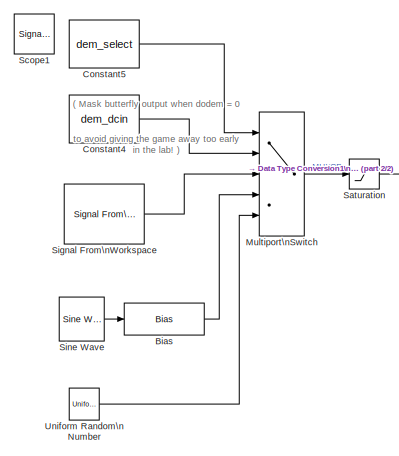
[diagram: root canvas - part 1/2, top left region]
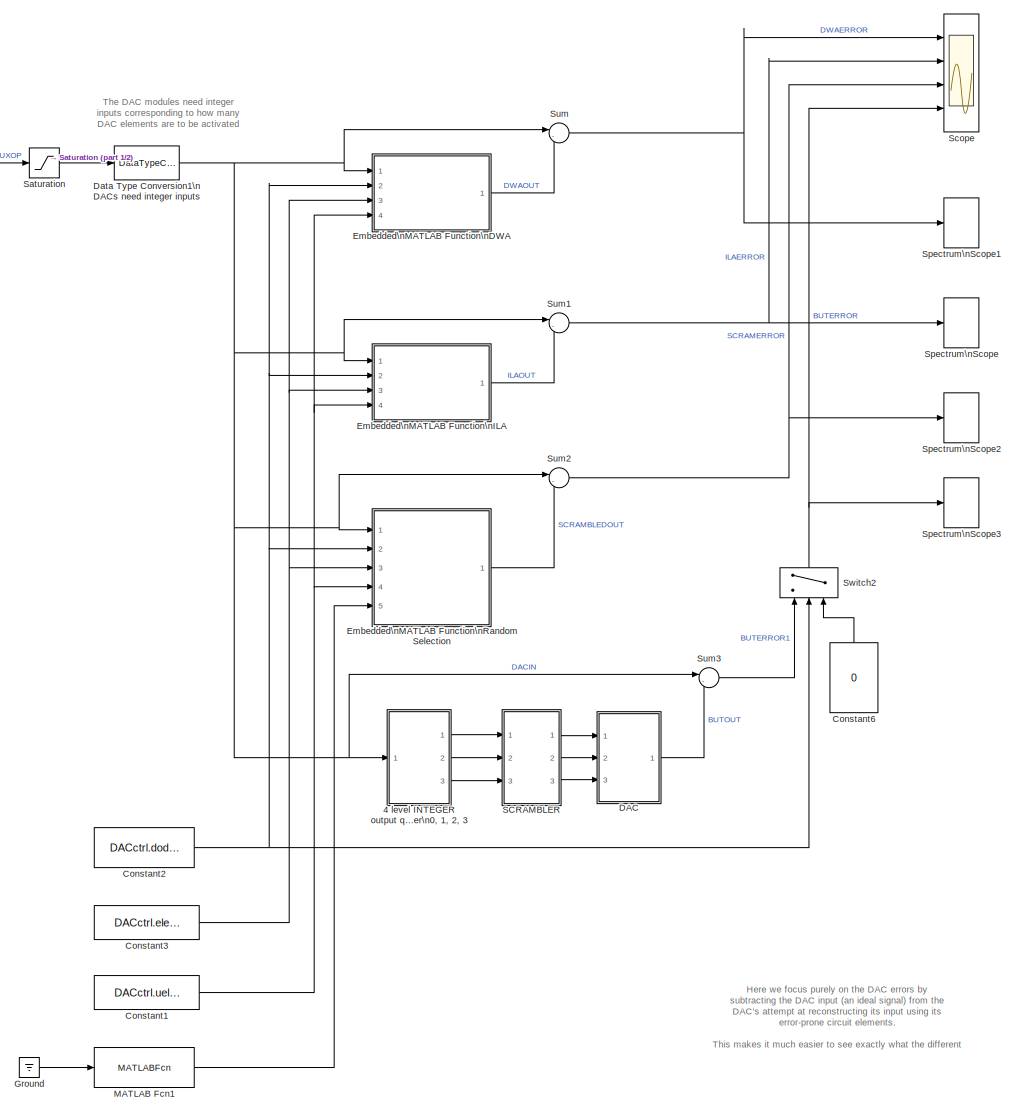
[diagram: root canvas - part 2/2, most of the canvas]
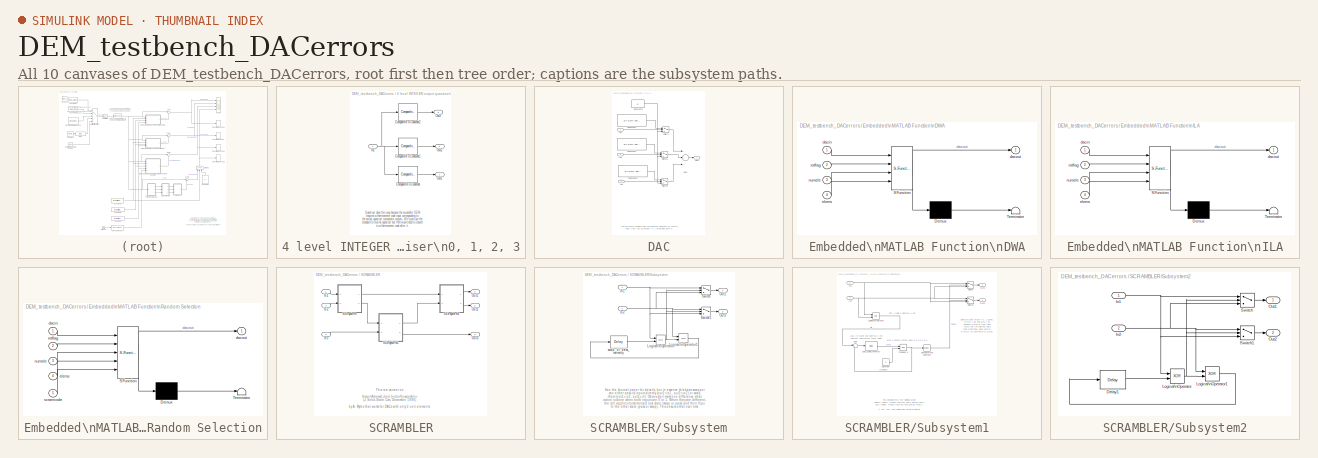
[diagram: thumbnail index - all 10 canvases of the model, root first then tree order]
MODEL DEM_testbench_DACerrors
KIND model
BLOCK [SubSystem] 4 level INTEGER  output quantiser\n0, 1, 2, 3
  FunctionWithSeparateData = off
  MaskHideContents = off
  MinAlgLoopOccurrences = off
  Opaque = off
  Ports = [1, 3]
  PropExecContextOutsideSubsystem = off
  RTWSystemCode = Auto
  RequestExecContextInheritance = off
  SID = 172
BLOCK [Reference] 4 level INTEGER  output quantiser\n0, 1, 2, 3/Compare\nTo Constant  REF=simulink/Logic and Bit\nOperations/Compare\nTo Constant
  OutDataTypeStr = uint8
  Ports = [1, 1]
  SID = 174
  SourceBlock = simulink/Logic and Bit\nOperations/Compare\nTo Constant
  SourceType = Compare To Constant
  ZeroCross = on
  const = 1
  relop = >=
BLOCK [Reference] 4 level INTEGER  output quantiser\n0, 1, 2, 3/Compare\nTo Constant1  REF=simulink/Logic and Bit\nOperations/Compare\nTo Constant
  OutDataTypeStr = uint8
  Ports = [1, 1]
  SID = 175
  SourceBlock = simulink/Logic and Bit\nOperations/Compare\nTo Constant
  SourceType = Compare To Constant
  ZeroCross = on
  const = 2
  relop = >=
BLOCK [Reference] 4 level INTEGER  output quantiser\n0, 1, 2, 3/Compare\nTo Constant2  REF=simulink/Logic and Bit\nOperations/Compare\nTo Constant
  OutDataTypeStr = uint8
  Ports = [1, 1]
  SID = 176
  SourceBlock = simulink/Logic and Bit\nOperations/Compare\nTo Constant
  SourceType = Compare To Constant
  ZeroCross = on
  const = 3
  relop = >=
BLOCK [Inport] 4 level INTEGER  output quantiser\n0, 1, 2, 3/In1
  IconDisplay = Port number
  SID = 173
BLOCK [Outport] 4 level INTEGER  output quantiser\n0, 1, 2, 3/Out1
  IconDisplay = Port number
  SID = 177
BLOCK [Outport] 4 level INTEGER  output quantiser\n0, 1, 2, 3/Out2
  IconDisplay = Port number
  Port = 2
  SID = 178
BLOCK [Outport] 4 level INTEGER  output quantiser\n0, 1, 2, 3/Out3
  IconDisplay = Port number
  Port = 3
  SID = 179
BLOCK [Bias] Bias
  Bias = dem_sinamp/2
  SID = 104
  SaturateOnIntegerOverflow = off
BLOCK [Constant] Constant1
  SID = 90
  SampleTime = 1/Fs
  Value = DACctrl.uelement
BLOCK [Constant] Constant2
  SID = 74
  SampleTime = 1/Fs
  Value = DACctrl.dodem
BLOCK [Constant] Constant3
  SID = 75
  SampleTime = 1/Fs
  Value = DACctrl.elecount
BLOCK [Constant] Constant4
  SID = 93
  SampleTime = 1/Fs
  Value = dem_dcin
BLOCK [Constant] Constant5
  SID = 100
  SampleTime = 1/Fs
  Value = dem_select
BLOCK [Constant] Constant6
  SID = 183
  SampleTime = 1/Fs
  Value = 0
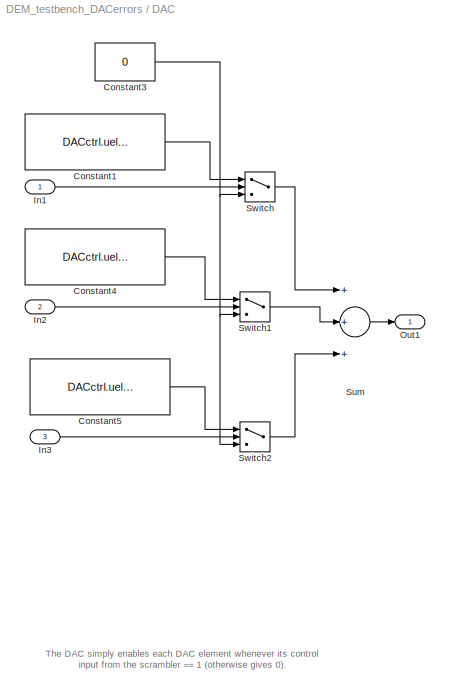
BLOCK [SubSystem] DAC
  FunctionWithSeparateData = off
  MaskHideContents = off
  MinAlgLoopOccurrences = off
  Opaque = off
  Ports = [3, 1]
  PropExecContextOutsideSubsystem = off
  RTWSystemCode = Auto
  RequestExecContextInheritance = off
  SID = 159
BLOCK [Constant] DAC/Constant1
  SID = 163
  SampleTime = 1/Fs
  Value = DACctrl.uelement(1)
BLOCK [Constant] DAC/Constant3
  SID = 164
  SampleTime = 1/Fs
  Value = 0
BLOCK [Constant] DAC/Constant4
  SID = 165
  SampleTime = 1/Fs
  Value = DACctrl.uelement(2)
BLOCK [Constant] DAC/Constant5
  SID = 166
  SampleTime = 1/Fs
  Value = DACctrl.uelement(3)
BLOCK [Inport] DAC/In1
  IconDisplay = Port number
  SID = 160
BLOCK [Inport] DAC/In2
  IconDisplay = Port number
  Port = 2
  SID = 161
BLOCK [Inport] DAC/In3
  IconDisplay = Port number
  Port = 3
  SID = 162
BLOCK [Outport] DAC/Out1
  IconDisplay = Port number
  SID = 171
BLOCK [Sum] DAC/Sum
  InputSameDT = off
  Inputs = +++
  OutDataTypeStr = Inherit: Inherit via internal rule
  Ports = [3, 1]
  SID = 167
  SaturateOnIntegerOverflow = off
BLOCK [Switch] DAC/Switch
  Criteria = u2 > Threshold
  InputSameDT = off
  SID = 168
  SaturateOnIntegerOverflow = off
  Threshold = 0.1
BLOCK [Switch] DAC/Switch1
  Criteria = u2 > Threshold
  InputSameDT = off
  SID = 169
  SaturateOnIntegerOverflow = off
  Threshold = 0.1
BLOCK [Switch] DAC/Switch2
  Criteria = u2 > Threshold
  InputSameDT = off
  SID = 170
  SaturateOnIntegerOverflow = off
  Threshold = 0.1
BLOCK [DataTypeConversion] Data Type Conversion1\nDACs need integer inputs
  OutDataTypeStr = uint8
  RndMeth = Nearest
  SID = 102
  SaturateOnIntegerOverflow = off
BLOCK [SubSystem] Embedded\nMATLAB Function\nDWA
  ErrorFcn = Stateflow.Translate.translate
  FunctionWithSeparateData = off
  MaskHideContents = off
  MinAlgLoopOccurrences = off
  Opaque = off
  PermitHierarchicalResolution = ExplicitOnly
  Ports = [4, 1]
  PropExecContextOutsideSubsystem = off
  RTWSystemCode = Auto
  RequestExecContextInheritance = off
  SFBlockType = MATLAB Function
  SID = 78
  TreatAsAtomicUnit = on
BLOCK [Demux] Embedded\nMATLAB Function\nDWA/ Demux 
  Outputs = 1
  Ports = [1, 1]
  SID = 78::84
BLOCK [S-Function] Embedded\nMATLAB Function\nDWA/ SFunction 
  EnableBusSupport = on
  FunctionName = sf_sfun
  PortCounts = [4 2]
  Ports = [4, 2]
  SID = 78::83
  Tag = Stateflow S-Function DEM_testbench_DACerrors 2
BLOCK [Terminator] Embedded\nMATLAB Function\nDWA/ Terminator 
  SID = 78::85
BLOCK [Inport] Embedded\nMATLAB Function\nDWA/dacin
  IconDisplay = Port number
  SID = 78::78
BLOCK [Outport] Embedded\nMATLAB Function\nDWA/dacout
  IconDisplay = Port number
  SID = 78::89
BLOCK [Inport] Embedded\nMATLAB Function\nDWA/elems
  IconDisplay = Port number
  Port = 4
  SID = 78::88
BLOCK [Inport] Embedded\nMATLAB Function\nDWA/numele
  IconDisplay = Port number
  Port = 3
  SID = 78::87
BLOCK [Inport] Embedded\nMATLAB Function\nDWA/rotflag
  IconDisplay = Port number
  Port = 2
  SID = 78::86
BLOCK [SubSystem] Embedded\nMATLAB Function\nILA
  ErrorFcn = Stateflow.Translate.translate
  FunctionWithSeparateData = off
  MaskHideContents = off
  MinAlgLoopOccurrences = off
  Opaque = off
  PermitHierarchicalResolution = ExplicitOnly
  Ports = [4, 1]
  PropExecContextOutsideSubsystem = off
  RTWSystemCode = Auto
  RequestExecContextInheritance = off
  SFBlockType = MATLAB Function
  SID = 94
  TreatAsAtomicUnit = on
BLOCK [Demux] Embedded\nMATLAB Function\nILA/ Demux 
  Outputs = 1
  Ports = [1, 1]
  SID = 94::100
BLOCK [S-Function] Embedded\nMATLAB Function\nILA/ SFunction 
  EnableBusSupport = on
  FunctionName = sf_sfun
  PortCounts = [4 2]
  Ports = [4, 2]
  SID = 94::99
  Tag = Stateflow S-Function DEM_testbench_DACerrors 1
BLOCK [Terminator] Embedded\nMATLAB Function\nILA/ Terminator 
  SID = 94::101
BLOCK [Inport] Embedded\nMATLAB Function\nILA/dacin
  IconDisplay = Port number
  SID = 94::94
BLOCK [Outport] Embedded\nMATLAB Function\nILA/dacout
  IconDisplay = Port number
  SID = 94::105
BLOCK [Inport] Embedded\nMATLAB Function\nILA/elems
  IconDisplay = Port number
  Port = 4
  SID = 94::104
BLOCK [Inport] Embedded\nMATLAB Function\nILA/numele
  IconDisplay = Port number
  Port = 3
  SID = 94::103
BLOCK [Inport] Embedded\nMATLAB Function\nILA/rotflag
  IconDisplay = Port number
  Port = 2
  SID = 94::102
BLOCK [SubSystem] Embedded\nMATLAB Function\nRandom Selection
  ErrorFcn = Stateflow.Translate.translate
  FunctionWithSeparateData = off
  MaskHideContents = off
  MinAlgLoopOccurrences = off
  Opaque = off
  PermitHierarchicalResolution = ExplicitOnly
  Ports = [5, 1]
  PropExecContextOutsideSubsystem = off
  RTWSystemCode = Auto
  RequestExecContextInheritance = off
  SFBlockType = MATLAB Function
  SID = 106
  TreatAsAtomicUnit = on
BLOCK [Demux] Embedded\nMATLAB Function\nRandom Selection/ Demux 
  Outputs = 1
  Ports = [1, 1]
  SID = 106::112
BLOCK [S-Function] Embedded\nMATLAB Function\nRandom Selection/ SFunction 
  EnableBusSupport = on
  FunctionName = sf_sfun
  PortCounts = [5 2]
  Ports = [5, 2]
  SID = 106::111
  Tag = Stateflow S-Function DEM_testbench_DACerrors 3
BLOCK [Terminator] Embedded\nMATLAB Function\nRandom Selection/ Terminator 
  SID = 106::113
BLOCK [Inport] Embedded\nMATLAB Function\nRandom Selection/dacin
  IconDisplay = Port number
  SID = 106::106
BLOCK [Outport] Embedded\nMATLAB Function\nRandom Selection/dacout
  IconDisplay = Port number
  SID = 106::118
BLOCK [Inport] Embedded\nMATLAB Function\nRandom Selection/elems
  IconDisplay = Port number
  Port = 4
  SID = 106::116
BLOCK [Inport] Embedded\nMATLAB Function\nRandom Selection/numele
  IconDisplay = Port number
  Port = 3
  SID = 106::115
BLOCK [Inport] Embedded\nMATLAB Function\nRandom Selection/rotflag
  IconDisplay = Port number
  Port = 2
  SID = 106::114
BLOCK [Inport] Embedded\nMATLAB Function\nRandom Selection/scramcode
  IconDisplay = Port number
  Port = 5
  SID = 106::117
BLOCK [Ground] Ground
  SID = 116
BLOCK [MATLABFcn] MATLAB Fcn1
  MATLABFcn = randperm(DACctrl.elecount)
  Ports = [1, 1]
  SID = 114
  SampleTime = 1/Fs
BLOCK [MultiPortSwitch] Multiport\nSwitch
  InputSameDT = off
  Inputs = 4
  Ports = [5, 1]
  SID = 99
  SaturateOnIntegerOverflow = off
BLOCK [SubSystem] SCRAMBLER
  FunctionWithSeparateData = off
  MaskHideContents = off
  MinAlgLoopOccurrences = off
  Opaque = off
  Ports = [3, 3]
  PropExecContextOutsideSubsystem = off
  RTWSystemCode = Auto
  RequestExecContextInheritance = off
  SID = 119
BLOCK [Inport] SCRAMBLER/In1
  IconDisplay = Port number
  SID = 120
BLOCK [Inport] SCRAMBLER/In2
  IconDisplay = Port number
  Port = 2
  SID = 121
BLOCK [Inport] SCRAMBLER/In3
  IconDisplay = Port number
  Port = 3
  SID = 122
BLOCK [Outport] SCRAMBLER/Out1
  IconDisplay = Port number
  SID = 156
BLOCK [Outport] SCRAMBLER/Out2
  IconDisplay = Port number
  Port = 2
  SID = 157
BLOCK [Outport] SCRAMBLER/Out3
  IconDisplay = Port number
  Port = 3
  SID = 158
BLOCK [SubSystem] SCRAMBLER/Subsystem
  FunctionWithSeparateData = off
  MaskHideContents = off
  MinAlgLoopOccurrences = off
  Opaque = off
  Ports = [2, 2]
  PropExecContextOutsideSubsystem = off
  RTWSystemCode = Auto
  RequestExecContextInheritance = off
  SID = 123
BLOCK [Inport] SCRAMBLER/Subsystem/In1
  IconDisplay = Port number
  SID = 124
BLOCK [Inport] SCRAMBLER/Subsystem/In2
  IconDisplay = Port number
  Port = 2
  SID = 125
BLOCK [Logic] SCRAMBLER/Subsystem/Logical\nOperator
  AllPortsSameDT = off
  Operator = XOR
  OutDataTypeStr = boolean
  Ports = [2, 1]
  SID = 126
BLOCK [Logic] SCRAMBLER/Subsystem/Logical\nOperator1
  AllPortsSameDT = off
  Operator = XOR
  OutDataTypeStr = boolean
  Ports = [2, 1]
  SID = 127
BLOCK [Outport] SCRAMBLER/Subsystem/Out1
  IconDisplay = Port number
  SID = 131
BLOCK [Outport] SCRAMBLER/Subsystem/Out2
  IconDisplay = Port number
  Port = 2
  SID = 132
BLOCK [Switch] SCRAMBLER/Subsystem/Switch
  InputSameDT = off
  SID = 128
  SaturateOnIntegerOverflow = off
  Threshold = 0.4
BLOCK [Switch] SCRAMBLER/Subsystem/Switch1
  InputSameDT = off
  SID = 129
  SaturateOnIntegerOverflow = off
  Threshold = 0.4
BLOCK [Reference] SCRAMBLER/Subsystem/swap_or_pass_memory  REF=dspsigops/Delay
  InputProcessing = Columns as channels (frame based)
  Ports = [1, 1]
  SID = 130
  SourceBlock = dspsigops/Delay
  SourceType = Delay
  UserData = DataTag0
  UserDataPersistent = on
  delay = 1
  dif_ic_for_ch = off
  dif_ic_for_dly = off
  dly_unit = Samples
  ic = 0
  ic_detail = off
  reset_popup = None
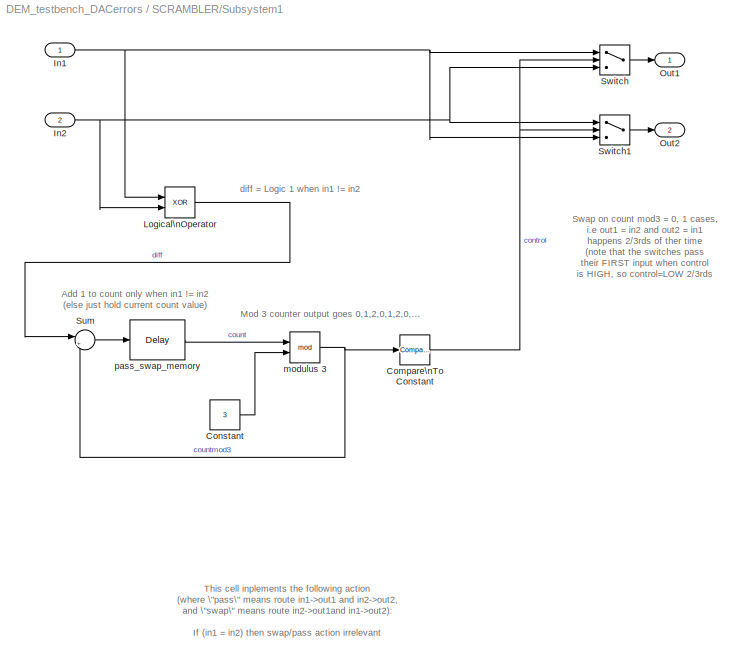
BLOCK [SubSystem] SCRAMBLER/Subsystem1
  AttributesFormatString = Non-standard\\nswitching block
  FunctionWithSeparateData = off
  MaskHideContents = off
  MinAlgLoopOccurrences = off
  Opaque = off
  Ports = [2, 2]
  PropExecContextOutsideSubsystem = off
  RTWSystemCode = Auto
  RequestExecContextInheritance = off
  SID = 133
BLOCK [Reference] SCRAMBLER/Subsystem1/Compare\nTo Constant  REF=simulink/Logic and Bit\nOperations/Compare\nTo Constant
  OutDataTypeStr = boolean
  Ports = [1, 1]
  SID = 136
  SourceBlock = simulink/Logic and Bit\nOperations/Compare\nTo Constant
  SourceType = Compare To Constant
  ZeroCross = on
  const = 2
  relop = ==
BLOCK [Constant] SCRAMBLER/Subsystem1/Constant
  SID = 137
  Value = 3
BLOCK [Inport] SCRAMBLER/Subsystem1/In1
  IconDisplay = Port number
  SID = 134
BLOCK [Inport] SCRAMBLER/Subsystem1/In2
  IconDisplay = Port number
  Port = 2
  SID = 135
BLOCK [Logic] SCRAMBLER/Subsystem1/Logical\nOperator
  AllPortsSameDT = off
  Operator = XOR
  OutDataTypeStr = boolean
  Ports = [2, 1]
  SID = 138
BLOCK [Outport] SCRAMBLER/Subsystem1/Out1
  IconDisplay = Port number
  SID = 144
BLOCK [Outport] SCRAMBLER/Subsystem1/Out2
  IconDisplay = Port number
  Port = 2
  SID = 145
BLOCK [Sum] SCRAMBLER/Subsystem1/Sum
  IconShape = round
  InputSameDT = off
  Inputs = |++
  OutDataTypeStr = Inherit: Inherit via internal rule
  Ports = [2, 1]
  SID = 139
  SaturateOnIntegerOverflow = off
BLOCK [Switch] SCRAMBLER/Subsystem1/Switch
  InputSameDT = off
  SID = 140
  SaturateOnIntegerOverflow = off
  Threshold = 0.5
BLOCK [Switch] SCRAMBLER/Subsystem1/Switch1
  InputSameDT = off
  SID = 141
  SaturateOnIntegerOverflow = off
  Threshold = 0.5
BLOCK [Math] SCRAMBLER/Subsystem1/modulus 3
  Operator = mod
  Ports = [2, 1]
  SID = 142
BLOCK [Reference] SCRAMBLER/Subsystem1/pass_swap_memory  REF=dspsigops/Delay
  InputProcessing = Columns as channels (frame based)
  Ports = [1, 1]
  SID = 143
  SourceBlock = dspsigops/Delay
  SourceType = Delay
  UserData = DataTag1
  UserDataPersistent = on
  delay = 1
  dif_ic_for_ch = off
  dif_ic_for_dly = off
  dly_unit = Samples
  ic = 0
  ic_detail = off
  reset_popup = None
BLOCK [SubSystem] SCRAMBLER/Subsystem2
  FunctionWithSeparateData = off
  MaskHideContents = off
  MinAlgLoopOccurrences = off
  Opaque = off
  Ports = [2, 2]
  PropExecContextOutsideSubsystem = off
  RTWSystemCode = Auto
  RequestExecContextInheritance = off
  SID = 146
BLOCK [Reference] SCRAMBLER/Subsystem2/Delay1  REF=dspsigops/Delay
  InputProcessing = Columns as channels (frame based)
  Ports = [1, 1]
  SID = 149
  SourceBlock = dspsigops/Delay
  SourceType = Delay
  UserData = DataTag2
  UserDataPersistent = on
  delay = 1
  dif_ic_for_ch = off
  dif_ic_for_dly = off
  dly_unit = Samples
  ic = 0
  ic_detail = off
  reset_popup = None
BLOCK [Inport] SCRAMBLER/Subsystem2/In1
  IconDisplay = Port number
  SID = 147
BLOCK [Inport] SCRAMBLER/Subsystem2/In2
  IconDisplay = Port number
  Port = 2
  SID = 148
BLOCK [Logic] SCRAMBLER/Subsystem2/Logical\nOperator
  AllPortsSameDT = off
  Operator = XOR
  OutDataTypeStr = boolean
  Ports = [2, 1]
  SID = 150
BLOCK [Logic] SCRAMBLER/Subsystem2/Logical\nOperator1
  AllPortsSameDT = off
  Operator = XOR
  OutDataTypeStr = boolean
  Ports = [2, 1]
  SID = 151
BLOCK [Outport] SCRAMBLER/Subsystem2/Out1
  IconDisplay = Port number
  SID = 154
BLOCK [Outport] SCRAMBLER/Subsystem2/Out2
  IconDisplay = Port number
  Port = 2
  SID = 155
BLOCK [Switch] SCRAMBLER/Subsystem2/Switch
  InputSameDT = off
  SID = 152
  SaturateOnIntegerOverflow = off
  Threshold = 0.5
BLOCK [Switch] SCRAMBLER/Subsystem2/Switch1
  InputSameDT = off
  SID = 153
  SaturateOnIntegerOverflow = off
  Threshold = 0.5
BLOCK [Saturate] Saturation
  InputPortMap = u0
  LowerLimit = 0
  Ports = [1, 1]
  SID = 103
  UpperLimit = DACctrl.elecount
BLOCK [Scope] Scope
  DataFormat = StructureWithTime
  Floating = off
  NumInputPorts = 4
  Ports = [4]
  SID = 80
  SampleTime = 0
  ShowLegends = off
  YMax = 0.04~5~5~5
  YMin = -0.04~-5~-5~-5
  ZoomMode = xonly
BLOCK [SignalViewerScope] Scope1
  IOType = viewer
  MaxDataPoints = 7500
  NumInputPorts = 2
  Ports = []
  RefreshTime = 0.035000
  SID = 117
  ShowDataMarkers = off
  ShowLegends = off
  YMax = 3~3
  YMin = 0~0
  ZoomMode = xonly
BLOCK [Reference] Signal From\nWorkspace  REF=dspsrcs4/Signal From\nWorkspace
  OutputAfterFinalValue = Cyclic repetition
  Ports = [0, 1]
  SID = 96
  SourceBlock = dspsrcs4/Signal From\nWorkspace
  SourceType = Signal From Workspace
  Ts = 1/Fs
  X = [1 1 2]
  ignoreOrWarnInputAndFrameLengths = off
  nsamps = 1
BLOCK [Reference] Sine Wave  REF=dspsrcs4/Sine Wave
  Amplitude = dem_sinamp/2
  CompMethod = Trigonometric fcn
  Frequency = dem_sinfreq
  LastOutDataTypeStr = double
  OutComplex = Real
  OutDataTypeStr = double
  Phase = 0
  Ports = [0, 1]
  ResetState = Restart at time zero
  SID = 98
  SampleMode = Discrete
  SampleTime = 1/Fs
  SamplesPerFrame = 1
  SourceBlock = dspsrcs4/Sine Wave
  SourceType = Sine Wave
  TableSize = Speed
  additionalParams = off
  allowOverrides = on
  dataType = double
  fracBitsMode = Best precision
  numFracBits = 15
  udDataType = sfix(16)
  wordLen = 16
BLOCK [SpectrumAnalyzer] Spectrum\nScope
  CloseFcn = scopeextensions.ScopeBlock.callback(gcbh, 'onBlockClose');
  CopyFcn = scopeextensions.ScopeBlock.callback(gcbh, 'onBlockCopy', gcbh);
  DeleteFcn = scopeextensions.ScopeBlock.callback(gcbh, 'onBlockDelete');
  NameChangeFcn = scopeextensions.ScopeBlock.callback(gcbh, 'onBlockRename');
  Ports = [1]
  PreDeleteFcn = scopeextensions.ScopeBlock.callback(gcbh, 'onBlockPreDelete');
  PreSaveFcn = scopeextensions.ScopeBlock.callback(gcbh, 'onModelSave');
  SID = 21
  UserData = DataTag3
  UserDataPersistent = on
BLOCK [SpectrumAnalyzer] Spectrum\nScope1
  CloseFcn = scopeextensions.ScopeBlock.callback(gcbh, 'onBlockClose');
  CopyFcn = scopeextensions.ScopeBlock.callback(gcbh, 'onBlockCopy', gcbh);
  DeleteFcn = scopeextensions.ScopeBlock.callback(gcbh, 'onBlockDelete');
  NameChangeFcn = scopeextensions.ScopeBlock.callback(gcbh, 'onBlockRename');
  Ports = [1]
  PreDeleteFcn = scopeextensions.ScopeBlock.callback(gcbh, 'onBlockPreDelete');
  PreSaveFcn = scopeextensions.ScopeBlock.callback(gcbh, 'onModelSave');
  SID = 186
  UserData = DataTag4
  UserDataPersistent = on
BLOCK [SpectrumAnalyzer] Spectrum\nScope2
  CloseFcn = scopeextensions.ScopeBlock.callback(gcbh, 'onBlockClose');
  CopyFcn = scopeextensions.ScopeBlock.callback(gcbh, 'onBlockCopy', gcbh);
  DeleteFcn = scopeextensions.ScopeBlock.callback(gcbh, 'onBlockDelete');
  NameChangeFcn = scopeextensions.ScopeBlock.callback(gcbh, 'onBlockRename');
  Ports = [1]
  PreDeleteFcn = scopeextensions.ScopeBlock.callback(gcbh, 'onBlockPreDelete');
  PreSaveFcn = scopeextensions.ScopeBlock.callback(gcbh, 'onModelSave');
  SID = 187
  UserData = DataTag5
  UserDataPersistent = on
BLOCK [SpectrumAnalyzer] Spectrum\nScope3
  CloseFcn = scopeextensions.ScopeBlock.callback(gcbh, 'onBlockClose');
  CopyFcn = scopeextensions.ScopeBlock.callback(gcbh, 'onBlockCopy', gcbh);
  DeleteFcn = scopeextensions.ScopeBlock.callback(gcbh, 'onBlockDelete');
  NameChangeFcn = scopeextensions.ScopeBlock.callback(gcbh, 'onBlockRename');
  Ports = [1]
  PreDeleteFcn = scopeextensions.ScopeBlock.callback(gcbh, 'onBlockPreDelete');
  PreSaveFcn = scopeextensions.ScopeBlock.callback(gcbh, 'onModelSave');
  SID = 188
  UserData = DataTag6
  UserDataPersistent = on
BLOCK [Sum] Sum
  IconShape = round
  InputSameDT = off
  Inputs = |-+
  OutDataTypeStr = Inherit: Inherit via internal rule
  Ports = [2, 1]
  SID = 108
  SaturateOnIntegerOverflow = off
BLOCK [Sum] Sum1
  IconShape = round
  InputSameDT = off
  Inputs = |-+
  OutDataTypeStr = Inherit: Inherit via internal rule
  Ports = [2, 1]
  SID = 109
  SaturateOnIntegerOverflow = off
BLOCK [Sum] Sum2
  IconShape = round
  InputSameDT = off
  Inputs = |-+
  OutDataTypeStr = Inherit: Inherit via internal rule
  Ports = [2, 1]
  SID = 110
  SaturateOnIntegerOverflow = off
BLOCK [Sum] Sum3
  IconShape = round
  InputSameDT = off
  Inputs = |-+
  OutDataTypeStr = Inherit: Inherit via internal rule
  Ports = [2, 1]
  SID = 180
  SaturateOnIntegerOverflow = off
BLOCK [Switch] Switch2
  Criteria = u2 > Threshold
  InputSameDT = off
  SID = 185
  SaturateOnIntegerOverflow = off
  Threshold = 0.1
BLOCK [UniformRandomNumber] Uniform Random\nNumber
  Maximum = DACctrl.elecount
  Minimum = 0
  SID = 105
  SampleTime = 1/Fs
ANNOTATION (root): ( Mask butterfly output when dodem = 0\nto avoid giving the game away too early\nin the lab! )
ANNOTATION (root): Here we focus purely on the DAC errors by\nsubtracting the DAC input (an ideal signal) from the\nDAC's attempt at reconstructing its input using its\nerror-prone circuit elements.\n\nThis makes it much easier to see exactly what the different\nDEM algorithms are doing to the DAC output error\nspectrums resulting from the DAC unit element errors.
ANNOTATION (root): The DAC modules need integer\ninputs corresponding to how many\nDAC elements are to be activated
ANNOTATION 4 level INTEGER  output quantiser\n0, 1, 2, 3: Quantiser done this way because the scrambler DEM\nrequires a thermometer code input corresponding to\nthe actual quantiser comparator outputs. We could use the\nstandard Simulink quantiser but then would need to convert\nto a thermometer code after it.
ANNOTATION DAC: The DAC simply enables each DAC element whenever its control\ninput from the scrambler == 1 (otherwise gives 0).
ANNOTATION SCRAMBLER: This is a variant on\n\nKwan/Adams/Libert butterfly scrambler\n(J. Solid-State Ccts. December 1996)\n\nby A. Myles that works for DACs with only 3 unit elements\n(a power-of-two element count is required for the usual\nbutterfly switching matrix, which is not so good for\nADCs using mid-step quantisers as they need\n(2^n)-1 unit elements in their DACs, so you'd need to\nadd a spare \"0\" element i...<+14ch>
ANNOTATION SCRAMBLER/Subsystem: See the Journal paper for details, but in essence this basic swapper\ncan either pass its inputs directly (out1=in1, out2=in2) or swap\nthem (out1=in2, out2=in). Obviously it makes no difference what\naction is done when both inputs are 0 or 1. When they are different,\nthe cell applies its memorised last state (swap or pass) and then flips\nto the other state (pass or swap). This ensures that ove...<+181ch>
ANNOTATION SCRAMBLER/Subsystem1: Add 1 to count only when in1 != in2\n(else just hold current count value)
ANNOTATION SCRAMBLER/Subsystem1: Mod 3 counter output goes 0,1,2,0,1,2,0,...
ANNOTATION SCRAMBLER/Subsystem1: Swap on count mod3 = 0, 1 cases,\ni.e out1 = in2 and out2 = in1\nhappens 2/3rds of ther time\n(note that the switches pass\ntheir FIRST input when control\nis HIGH, so control=LOW 2/3rds\nof the time actually means swap)
ANNOTATION SCRAMBLER/Subsystem1: This cell inplements the following action\n(where \"pass\" means route in1->out1 and in2->out2,\nand \"swap\" means route in2->out1and in1->out2):\n\nIf (in1 = in2) then swap/pass action irrelevant\n\nIf (in1 ! = in2) then \"swap\" 2/3 of the time and \"pass\"\n1/3rd of the time by following the repeating sequence\n\"swap\", \"swap\", \"pass\", ...
ANNOTATION SCRAMBLER/Subsystem1: diff = Logic 1 when in1 != in2
LINE 4 level INTEGER  output quantiser\n0, 1, 2, 3/Compare\nTo Constant1:1 -> 4 level INTEGER  output quantiser\n0, 1, 2, 3/Out2:1
LINE 4 level INTEGER  output quantiser\n0, 1, 2, 3/Compare\nTo Constant2:1 -> 4 level INTEGER  output quantiser\n0, 1, 2, 3/Out3:1
LINE 4 level INTEGER  output quantiser\n0, 1, 2, 3/Compare\nTo Constant:1 -> 4 level INTEGER  output quantiser\n0, 1, 2, 3/Out1:1
NET 4 level INTEGER  output quantiser\n0, 1, 2, 3/In1:1 -> 4 level INTEGER  output quantiser\n0, 1, 2, 3/Compare\nTo Constant1:1, 4 level INTEGER  output quantiser\n0, 1, 2, 3/Compare\nTo Constant2:1, 4 level INTEGER  output quantiser\n0, 1, 2, 3/Compare\nTo Constant:1
LINE 4 level INTEGER  output quantiser\n0, 1, 2, 3:1 -> SCRAMBLER:1
LINE 4 level INTEGER  output quantiser\n0, 1, 2, 3:2 -> SCRAMBLER:2
LINE 4 level INTEGER  output quantiser\n0, 1, 2, 3:3 -> SCRAMBLER:3
LINE Bias:1 -> Multiport\nSwitch:4
NET Constant1:1 -> Embedded\nMATLAB Function\nDWA:4, Embedded\nMATLAB Function\nILA:4, Embedded\nMATLAB Function\nRandom Selection:4
NET Constant2:1 -> Embedded\nMATLAB Function\nDWA:2, Embedded\nMATLAB Function\nILA:2, Embedded\nMATLAB Function\nRandom Selection:2, Switch2:2
NET Constant3:1 -> Embedded\nMATLAB Function\nDWA:3, Embedded\nMATLAB Function\nILA:3, Embedded\nMATLAB Function\nRandom Selection:3
LINE Constant4:1 -> Multiport\nSwitch:2
LINE Constant5:1 -> Multiport\nSwitch:1
LINE Constant6:1 -> Switch2:3
LINE DAC/Constant1:1 -> DAC/Switch:1
NET DAC/Constant3:1 -> DAC/Switch1:3, DAC/Switch2:3, DAC/Switch:3
LINE DAC/Constant4:1 -> DAC/Switch1:1
LINE DAC/Constant5:1 -> DAC/Switch2:1
LINE DAC/In1:1 -> DAC/Switch:2
LINE DAC/In2:1 -> DAC/Switch1:2
LINE DAC/In3:1 -> DAC/Switch2:2
LINE DAC/Sum:1 -> DAC/Out1:1
LINE DAC/Switch1:1 -> DAC/Sum:2
LINE DAC/Switch2:1 -> DAC/Sum:3
LINE DAC/Switch:1 -> DAC/Sum:1
LINE DAC:1 -> Sum3:2
NET Data Type Conversion1\nDACs need integer inputs:1 -> 4 level INTEGER  output quantiser\n0, 1, 2, 3:1, Embedded\nMATLAB Function\nDWA:1, Embedded\nMATLAB Function\nILA:1, Embedded\nMATLAB Function\nRandom Selection:1, Sum1:1, Sum2:1, Sum3:1, Sum:1
LINE Embedded\nMATLAB Function\nDWA/ Demux :1 -> Embedded\nMATLAB Function\nDWA/ Terminator :1
LINE Embedded\nMATLAB Function\nDWA/ SFunction :1 -> Embedded\nMATLAB Function\nDWA/ Demux :1
LINE Embedded\nMATLAB Function\nDWA/ SFunction :2 -> Embedded\nMATLAB Function\nDWA/dacout:1
LINE Embedded\nMATLAB Function\nDWA/dacin:1 -> Embedded\nMATLAB Function\nDWA/ SFunction :1
LINE Embedded\nMATLAB Function\nDWA/elems:1 -> Embedded\nMATLAB Function\nDWA/ SFunction :4
LINE Embedded\nMATLAB Function\nDWA/numele:1 -> Embedded\nMATLAB Function\nDWA/ SFunction :3
LINE Embedded\nMATLAB Function\nDWA/rotflag:1 -> Embedded\nMATLAB Function\nDWA/ SFunction :2
LINE Embedded\nMATLAB Function\nDWA:1 -> Sum:2
LINE Embedded\nMATLAB Function\nILA/ Demux :1 -> Embedded\nMATLAB Function\nILA/ Terminator :1
LINE Embedded\nMATLAB Function\nILA/ SFunction :1 -> Embedded\nMATLAB Function\nILA/ Demux :1
LINE Embedded\nMATLAB Function\nILA/ SFunction :2 -> Embedded\nMATLAB Function\nILA/dacout:1
LINE Embedded\nMATLAB Function\nILA/dacin:1 -> Embedded\nMATLAB Function\nILA/ SFunction :1
LINE Embedded\nMATLAB Function\nILA/elems:1 -> Embedded\nMATLAB Function\nILA/ SFunction :4
LINE Embedded\nMATLAB Function\nILA/numele:1 -> Embedded\nMATLAB Function\nILA/ SFunction :3
LINE Embedded\nMATLAB Function\nILA/rotflag:1 -> Embedded\nMATLAB Function\nILA/ SFunction :2
LINE Embedded\nMATLAB Function\nILA:1 -> Sum1:2
LINE Embedded\nMATLAB Function\nRandom Selection/ Demux :1 -> Embedded\nMATLAB Function\nRandom Selection/ Terminator :1
LINE Embedded\nMATLAB Function\nRandom Selection/ SFunction :1 -> Embedded\nMATLAB Function\nRandom Selection/ Demux :1
LINE Embedded\nMATLAB Function\nRandom Selection/ SFunction :2 -> Embedded\nMATLAB Function\nRandom Selection/dacout:1
LINE Embedded\nMATLAB Function\nRandom Selection/dacin:1 -> Embedded\nMATLAB Function\nRandom Selection/ SFunction :1
LINE Embedded\nMATLAB Function\nRandom Selection/elems:1 -> Embedded\nMATLAB Function\nRandom Selection/ SFunction :4
LINE Embedded\nMATLAB Function\nRandom Selection/numele:1 -> Embedded\nMATLAB Function\nRandom Selection/ SFunction :3
LINE Embedded\nMATLAB Function\nRandom Selection/rotflag:1 -> Embedded\nMATLAB Function\nRandom Selection/ SFunction :2
LINE Embedded\nMATLAB Function\nRandom Selection/scramcode:1 -> Embedded\nMATLAB Function\nRandom Selection/ SFunction :5
LINE Embedded\nMATLAB Function\nRandom Selection:1 -> Sum2:2
LINE Ground:1 -> MATLAB Fcn1:1
LINE MATLAB Fcn1:1 -> Embedded\nMATLAB Function\nRandom Selection:5
LINE Multiport\nSwitch:1 -> Saturation:1
LINE SCRAMBLER/In1:1 -> SCRAMBLER/Subsystem:1
LINE SCRAMBLER/In2:1 -> SCRAMBLER/Subsystem:2
LINE SCRAMBLER/In3:1 -> SCRAMBLER/Subsystem1:2
NET SCRAMBLER/Subsystem/In1:1 -> SCRAMBLER/Subsystem/Logical\nOperator:1, SCRAMBLER/Subsystem/Switch1:3, SCRAMBLER/Subsystem/Switch:1
NET SCRAMBLER/Subsystem/In2:1 -> SCRAMBLER/Subsystem/Logical\nOperator1:1, SCRAMBLER/Subsystem/Switch1:1, SCRAMBLER/Subsystem/Switch:3
LINE SCRAMBLER/Subsystem/Logical\nOperator1:1 -> SCRAMBLER/Subsystem/swap_or_pass_memory:1
NET SCRAMBLER/Subsystem/Logical\nOperator:1 -> SCRAMBLER/Subsystem/Logical\nOperator1:2, SCRAMBLER/Subsystem/Switch1:2, SCRAMBLER/Subsystem/Switch:2
LINE SCRAMBLER/Subsystem/Switch1:1 -> SCRAMBLER/Subsystem/Out2:1
LINE SCRAMBLER/Subsystem/Switch:1 -> SCRAMBLER/Subsystem/Out1:1
LINE SCRAMBLER/Subsystem/swap_or_pass_memory:1 -> SCRAMBLER/Subsystem/Logical\nOperator:2
NET SCRAMBLER/Subsystem1/Compare\nTo Constant:1 -> SCRAMBLER/Subsystem1/Switch1:2, SCRAMBLER/Subsystem1/Switch:2
LINE SCRAMBLER/Subsystem1/Constant:1 -> SCRAMBLER/Subsystem1/modulus 3:2
NET SCRAMBLER/Subsystem1/In1:1 -> SCRAMBLER/Subsystem1/Logical\nOperator:1, SCRAMBLER/Subsystem1/Switch1:3, SCRAMBLER/Subsystem1/Switch:1
NET SCRAMBLER/Subsystem1/In2:1 -> SCRAMBLER/Subsystem1/Logical\nOperator:2, SCRAMBLER/Subsystem1/Switch1:1, SCRAMBLER/Subsystem1/Switch:3
LINE SCRAMBLER/Subsystem1/Logical\nOperator:1 -> SCRAMBLER/Subsystem1/Sum:1
LINE SCRAMBLER/Subsystem1/Sum:1 -> SCRAMBLER/Subsystem1/pass_swap_memory:1
LINE SCRAMBLER/Subsystem1/Switch1:1 -> SCRAMBLER/Subsystem1/Out2:1
LINE SCRAMBLER/Subsystem1/Switch:1 -> SCRAMBLER/Subsystem1/Out1:1
NET SCRAMBLER/Subsystem1/modulus 3:1 -> SCRAMBLER/Subsystem1/Compare\nTo Constant:1, SCRAMBLER/Subsystem1/Sum:2
LINE SCRAMBLER/Subsystem1/pass_swap_memory:1 -> SCRAMBLER/Subsystem1/modulus 3:1
LINE SCRAMBLER/Subsystem1:1 -> SCRAMBLER/Subsystem2:2
LINE SCRAMBLER/Subsystem1:2 -> SCRAMBLER/Out3:1
LINE SCRAMBLER/Subsystem2/Delay1:1 -> SCRAMBLER/Subsystem2/Logical\nOperator:2
NET SCRAMBLER/Subsystem2/In1:1 -> SCRAMBLER/Subsystem2/Logical\nOperator:1, SCRAMBLER/Subsystem2/Switch1:3, SCRAMBLER/Subsystem2/Switch:1
NET SCRAMBLER/Subsystem2/In2:1 -> SCRAMBLER/Subsystem2/Logical\nOperator1:1, SCRAMBLER/Subsystem2/Switch1:1, SCRAMBLER/Subsystem2/Switch:3
LINE SCRAMBLER/Subsystem2/Logical\nOperator1:1 -> SCRAMBLER/Subsystem2/Delay1:1
NET SCRAMBLER/Subsystem2/Logical\nOperator:1 -> SCRAMBLER/Subsystem2/Logical\nOperator1:2, SCRAMBLER/Subsystem2/Switch1:2, SCRAMBLER/Subsystem2/Switch:2
LINE SCRAMBLER/Subsystem2/Switch1:1 -> SCRAMBLER/Subsystem2/Out2:1
LINE SCRAMBLER/Subsystem2/Switch:1 -> SCRAMBLER/Subsystem2/Out1:1
LINE SCRAMBLER/Subsystem2:1 -> SCRAMBLER/Out1:1
LINE SCRAMBLER/Subsystem2:2 -> SCRAMBLER/Out2:1
LINE SCRAMBLER/Subsystem:1 -> SCRAMBLER/Subsystem2:1
LINE SCRAMBLER/Subsystem:2 -> SCRAMBLER/Subsystem1:1
LINE SCRAMBLER:1 -> DAC:1
LINE SCRAMBLER:2 -> DAC:2
LINE SCRAMBLER:3 -> DAC:3
LINE Saturation:1 -> Data Type Conversion1\nDACs need integer inputs:1
LINE Signal From\nWorkspace:1 -> Multiport\nSwitch:3
LINE Sine Wave:1 -> Bias:1
NET Sum1:1 -> Scope:2, Spectrum\nScope:1
NET Sum2:1 -> Scope:3, Spectrum\nScope2:1
LINE Sum3:1 -> Switch2:1
NET Sum:1 -> Scope:1, Spectrum\nScope1:1
NET Switch2:1 -> Scope:4, Spectrum\nScope3:1
LINE Uniform Random\nNumber:1 -> Multiport\nSwitch:5
note: NET lines group one-source signal fan-out (src -> all destinations, sorted); 1:1 wires keep LINE
CHART Embedded\nMATLAB Function\nILA states=1 transitions=1
  STATE_LABEL 'eML_blk_kernel()'
CHART Embedded\nMATLAB Function\nDWA states=1 transitions=1
  STATE_LABEL 'eML_blk_kernel()'
CHART Embedded\nMATLAB Function\nRandom Selection states=1 transitions=1
  STATE_LABEL 'eML_blk_kernel()'
